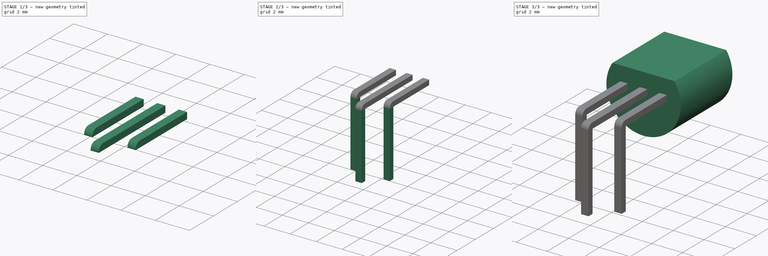
[diagram: build sequence overview — one tinted view per stage of 3, left to right]
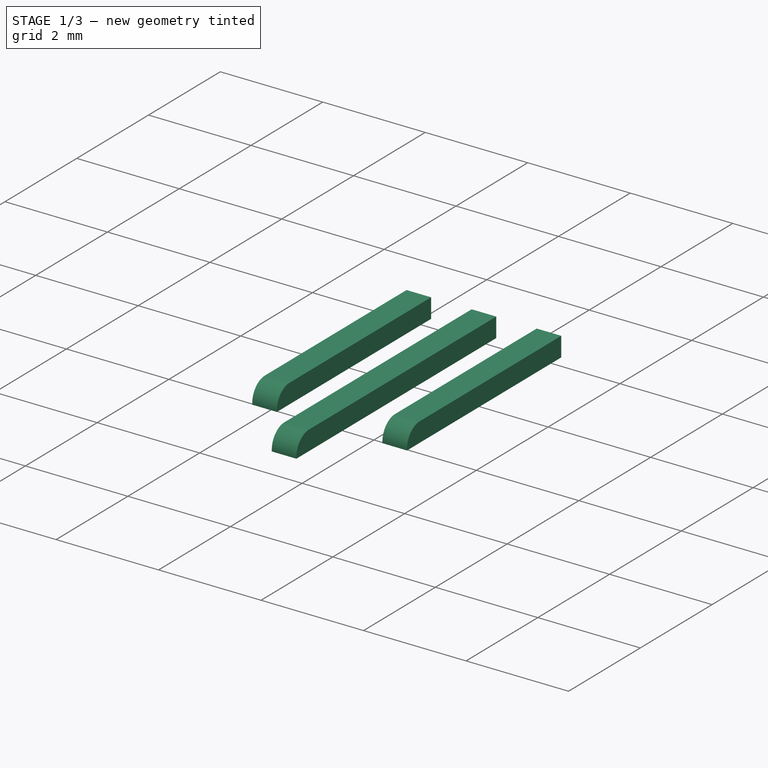
[diagram: stage 1 of 3 — iso view after this stage's code; geometry added in this stage tinted green]
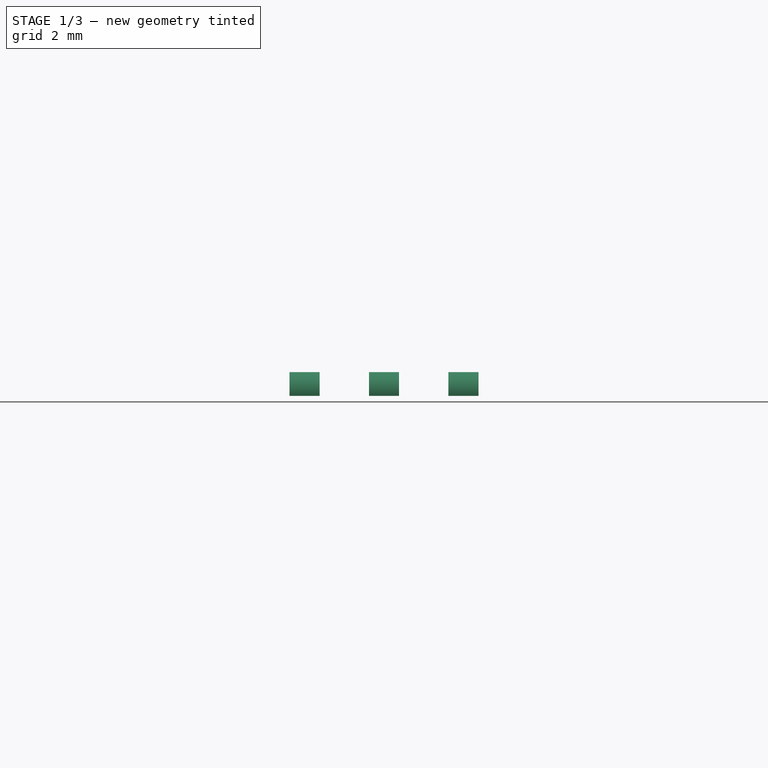
[diagram: stage 1 of 3 — front view after this stage's code; geometry added in this stage tinted green]
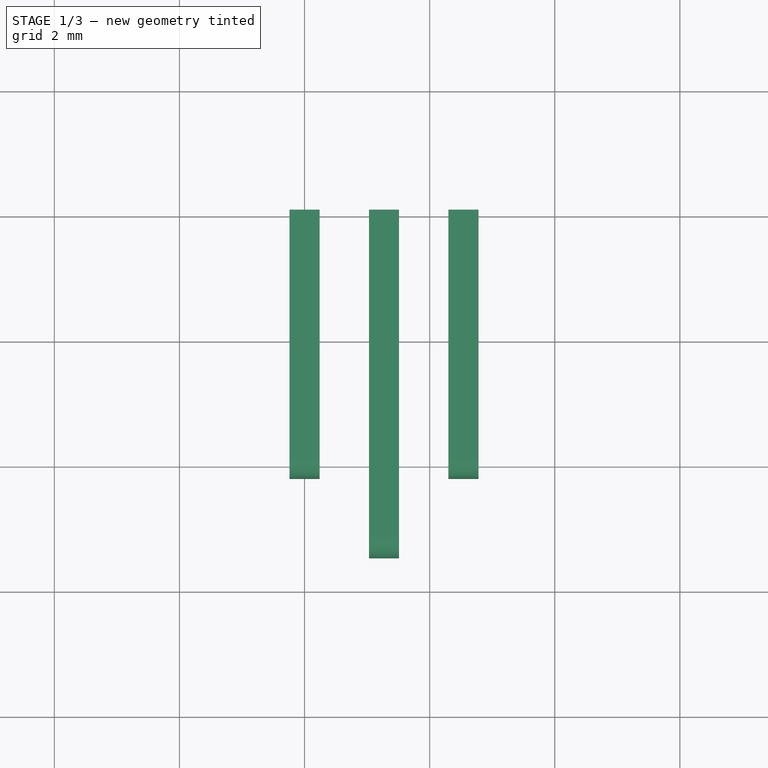
[diagram: stage 1 of 3 — top view after this stage's code; geometry added in this stage tinted green]
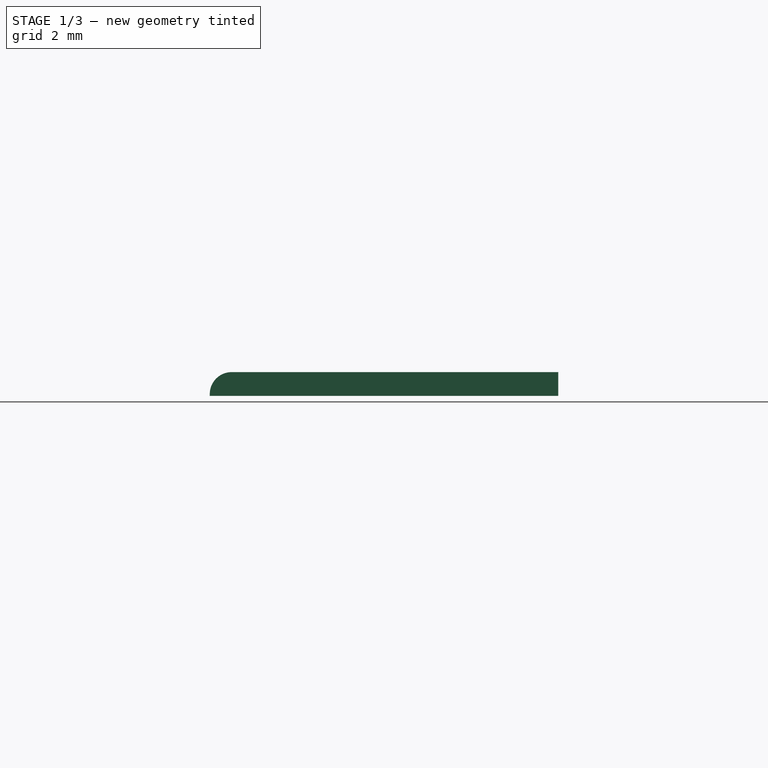
[diagram: stage 1 of 3 — right view after this stage's code; geometry added in this stage tinted green]
FCSTD DOCUMENT  (FreeCAD 0.16R6712 (Git))
Label: TO-92_W4.0mm_StaggerEven_Horizontal_FlatSideUp
License: All rights reserved
LicenseURL: http://en.wikipedia.org/wiki/All_rights_reserved
objects: Sketcher::SketchObject×3, PartDesign::Pad×3, Part::Feature×3, App::DocumentObjectGroup×1, PartDesign::Fillet×1, Part::MultiFuse×1
note: 14 computed .brp shape members not serialized (recipe doc carries the construction recipe); baked Part::Feature solids carry a one-line shape summary decoded from their .brp

FEATURE [Sketcher::SketchObject] Sketch002
  Placement = pos=(2.54,0,2.5) rot=(0,0,1;3.14159rad)
  expr: Constraints[29] = 0.38 / 2
  sketch-geometry (12):
    g0: LineSegment StartX=2.3 StartY=0.19 StartZ=0 EndX=2.78 EndY=0.19 EndZ=0
    g1: LineSegment StartX=2.78 StartY=0.19 StartZ=0 EndX=2.78 EndY=-4.11 EndZ=0
    g2: LineSegment StartX=2.78 StartY=-4.11 StartZ=0 EndX=2.3 EndY=-4.11 EndZ=0
    g3: LineSegment StartX=2.3 StartY=-4.11 StartZ=0 EndX=2.3 EndY=0.19 EndZ=0
    g4: LineSegment StartX=1.03 StartY=1.46 StartZ=0 EndX=1.51 EndY=1.46 EndZ=0
    g5: LineSegment StartX=1.51 StartY=1.46 StartZ=0 EndX=1.51 EndY=-4.11 EndZ=0
    g6: LineSegment StartX=1.51 StartY=-4.11 StartZ=0 EndX=1.03 EndY=-4.11 EndZ=0
    g7: LineSegment StartX=1.03 StartY=-4.11 StartZ=0 EndX=1.03 EndY=1.46 EndZ=0
    g8: LineSegment StartX=-0.24 StartY=0.19 StartZ=0 EndX=0.24 EndY=0.19 EndZ=0
    g9: LineSegment StartX=0.24 StartY=0.19 StartZ=0 EndX=0.24 EndY=-4.11 EndZ=0
    g10: LineSegment StartX=0.24 StartY=-4.11 StartZ=0 EndX=-0.24 EndY=-4.11 EndZ=0
    g11: LineSegment StartX=-0.24 StartY=-4.11 StartZ=0 EndX=-0.24 EndY=0.19 EndZ=0
  constraints (36):
    c: Coincident(g0,g1)
    c: Coincident(g1,g2)
    c: Coincident(g2,g3)
    c: Coincident(g3,g0)
    c: Horizontal(g0)
    c: Horizontal(g2)
    c: Vertical(g1)
    c: Vertical(g3)
    c: Coincident(g4,g5)
    c: Coincident(g5,g6)
    c: Coincident(g6,g7)
    c: Coincident(g7,g4)
    c: Horizontal(g4)
    c: Horizontal(g6)
    c: Vertical(g5)
    c: Vertical(g7)
    c: Coincident(g8,g9)
    c: Coincident(g9,g10)
    c: Coincident(g10,g11)
    c: Coincident(g11,g8)
    c: Horizontal(g8)
    c: Horizontal(g10)
    c: Vertical(g9)
    c: Vertical(g11)
    c: Equal(g8,g4)
    c: Equal(g4,g0)
    c: DistanceX(g8,g4) = 1.27
    c: DistanceX(g4,g0) = 1.27
    c: DistanceY(g1,g1) = 4.3
    c: DistanceY(g-1,g8) = 0.19
    c: DistanceY(g8,g4) = 1.27
    c: DistanceY(g0,g4) = 1.27
    c: DistanceX(g0,g0) = 0.48
    c: DistanceX(g8,g-1) = 0.24
    c: Equal(g1,g9)
    c: DistanceY(g2,g5) = 0
FEATURE [PartDesign::Pad] Pad002
  Length = 0.38
  Length2 = 100
  Placement = pos=(2.54,0,2.5) rot=(0,0,1;3.14159rad)
  Sketch = -> Sketch002
  Type = 0
FEATURE [Part::Feature] FusionAxisZ1  label="Z"
  shape: bbox 0.8 x 0.8 x 14 mm, 8 faces (baked)
FEATURE [Part::Feature] FusionAxisY1  label="Y"
  Placement = pos=(0,0,0.05) rot=(-1,0,0;1.5708rad)
  shape: bbox 0.8 x 14 x 0.8 mm, 8 faces (baked)
FEATURE [Part::Feature] FusionAxisX1  label="X"
  Placement = pos=(0,-0.05,0) rot=(0,1,0;1.5708rad)
  shape: bbox 14 x 0.8 x 0.8 mm, 8 faces (baked)
FEATURE [App::DocumentObjectGroup] axis
  Group = -> [FusionAxisZ1,FusionAxisY1,FusionAxisX1]
FEATURE [PartDesign::Fillet] Fillet
  Base = -> Pad002 [Edge16,Edge4,Edge28]
  Placement = pos=(2.54,0,2.5) rot=(0,0,1;3.14159rad)
  Radius = 0.35
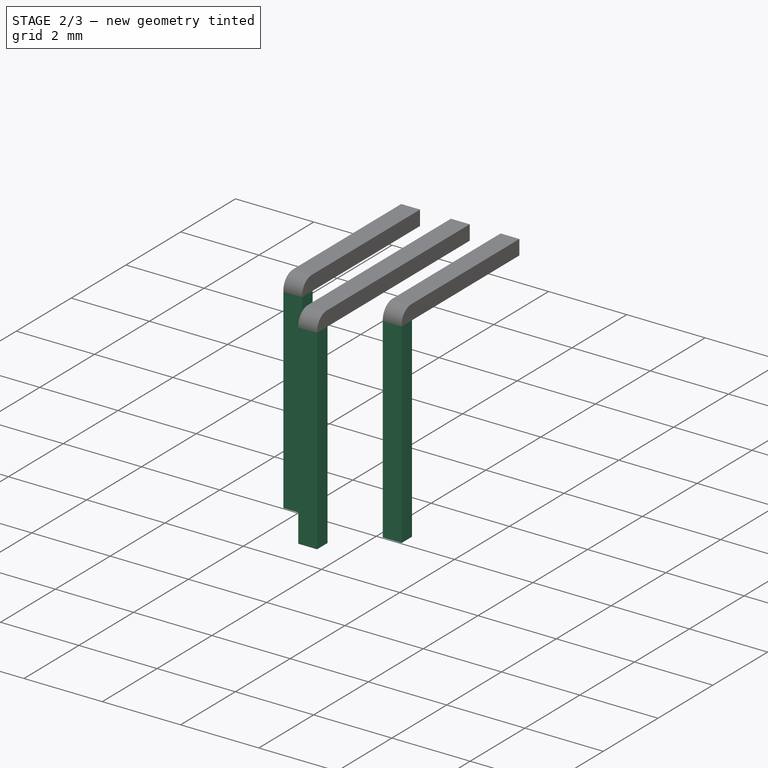
[diagram: stage 2 of 3 — iso view after this stage's code; geometry added in this stage tinted green]
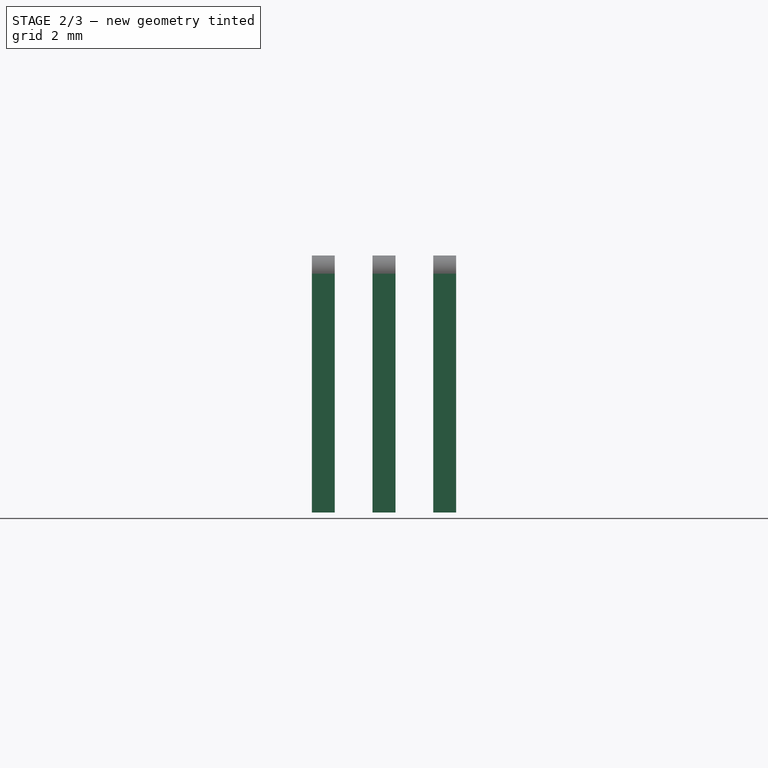
[diagram: stage 2 of 3 — front view after this stage's code; geometry added in this stage tinted green]
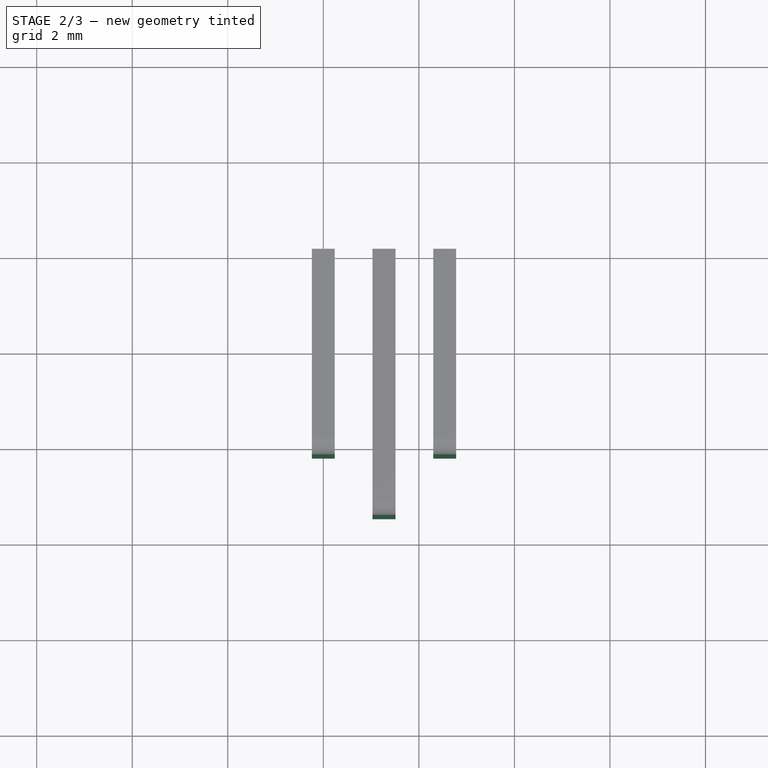
[diagram: stage 2 of 3 — top view after this stage's code; geometry added in this stage tinted green]
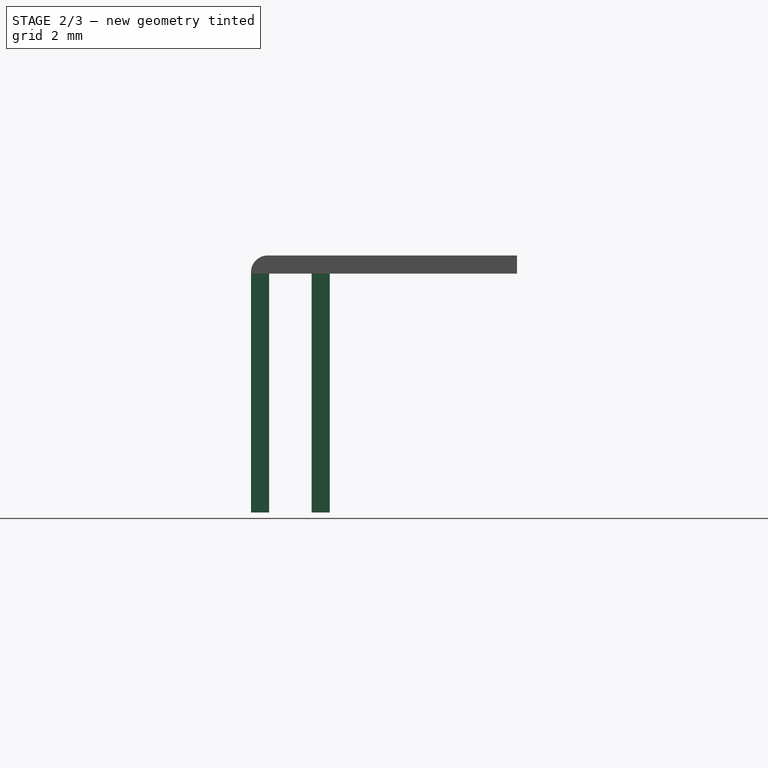
[diagram: stage 2 of 3 — right view after this stage's code; geometry added in this stage tinted green]
FEATURE [Sketcher::SketchObject] Sketch001
  Placement = pos=(0,0,2.5) rot=(0,0,1;0rad)
  expr: Constraints[38] = -1.27 - 0.38
  sketch-geometry (13):
    g0: LineSegment StartX=-0.24 StartY=0.19 StartZ=0 EndX=0.24 EndY=0.19 EndZ=0
    g1: LineSegment StartX=0.24 StartY=0.19 StartZ=0 EndX=0.24 EndY=-0.19 EndZ=0
    g2: LineSegment StartX=0.24 StartY=-0.19 StartZ=0 EndX=-0.24 EndY=-0.19 EndZ=0
    g3: LineSegment StartX=-0.24 StartY=-0.19 StartZ=0 EndX=-0.24 EndY=0.19 EndZ=0
    g4: LineSegment [constr] StartX=-0.24 StartY=0 StartZ=0 EndX=0.24 EndY=0 EndZ=0
    g5: LineSegment StartX=1.03 StartY=-1.46 StartZ=0 EndX=1.51 EndY=-1.46 EndZ=0
    g6: LineSegment StartX=1.51 StartY=-1.46 StartZ=0 EndX=1.51 EndY=-1.08 EndZ=0
    g7: LineSegment StartX=1.51 StartY=-1.08 StartZ=0 EndX=1.03 EndY=-1.08 EndZ=0
    g8: LineSegment StartX=1.03 StartY=-1.08 StartZ=0 EndX=1.03 EndY=-1.46 EndZ=0
    g9: LineSegment StartX=2.3 StartY=0.19 StartZ=0 EndX=2.78 EndY=0.19 EndZ=0
    g10: LineSegment StartX=2.78 StartY=0.19 StartZ=0 EndX=2.78 EndY=-0.19 EndZ=0
    g11: LineSegment StartX=2.78 StartY=-0.19 StartZ=0 EndX=2.3 EndY=-0.19 EndZ=0
    g12: LineSegment StartX=2.3 StartY=-0.19 StartZ=0 EndX=2.3 EndY=0.19 EndZ=0
  constraints (40):
    c: Coincident(g0,g1)
    c: Coincident(g1,g2)
    c: Coincident(g2,g3)
    c: Coincident(g3,g0)
    c: Horizontal(g0)
    c: Horizontal(g2)
    c: Vertical(g1)
    c: Vertical(g3)
    c: DistanceX(g0,g0) = 0.48
    c: DistanceY(g1,g1) = 0.38
    c: PointOnObject(g4,g3)
    c: PointOnObject(g4,g1)
    c: Horizontal(g4)
    c: PointOnObject(g-1,g4)
    c: Symmetric(g1,g1,g4)
    c: Symmetric(g4,g4,g-1)
    c: Coincident(g5,g6)
    c: Coincident(g6,g7)
    c: Coincident(g7,g8)
    c: Coincident(g8,g5)
    c: Horizontal(g5)
    c: Horizontal(g7)
    c: Vertical(g6)
    c: Vertical(g8)
    c: Coincident(g9,g10)
    c: Coincident(g10,g11)
    c: Coincident(g11,g12)
    c: Coincident(g12,g9)
    c: Horizontal(g9)
    c: Horizontal(g11)
    c: Vertical(g10)
    c: Vertical(g12)
    c: Equal(g5,g0)
    c: Equal(g9,g0)
    c: Equal(g3,g12)
    c: Equal(g8,g3)
    c: DistanceX(g0,g5) = 1.27
    c: DistanceX(g5,g9) = 1.27
    c: DistanceY(g0,g5) = -1.65
    c: DistanceY(g9,g0) = 0
FEATURE [PartDesign::Pad] Pad001
  Length = 5
  Length2 = 100
  Placement = pos=(0,0,2.5) rot=(0,0,1;0rad)
  Reversed = true
  Sketch = -> Sketch001
  Type = 0
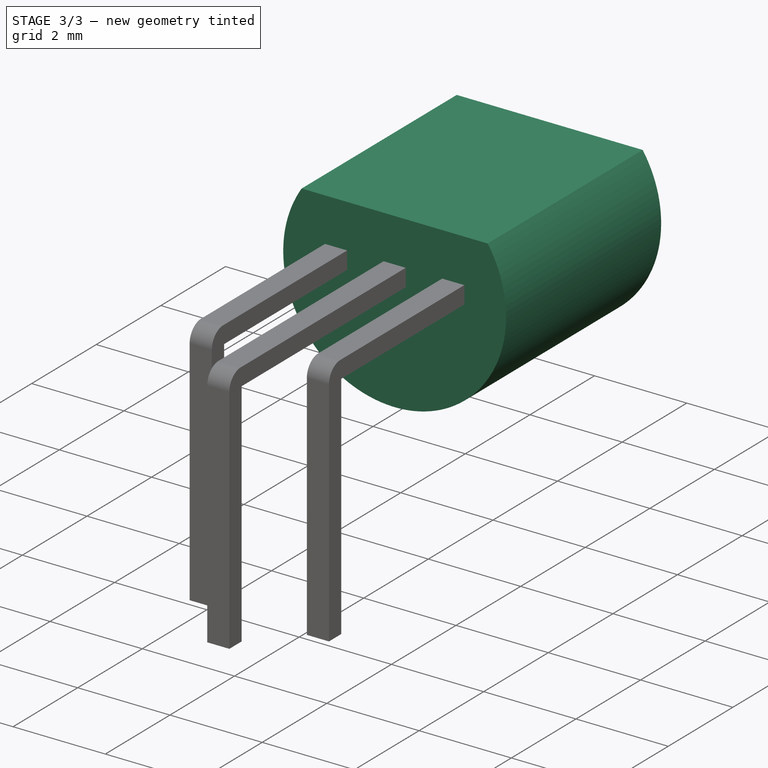
[diagram: stage 3 of 3 — iso view after this stage's code; geometry added in this stage tinted green]
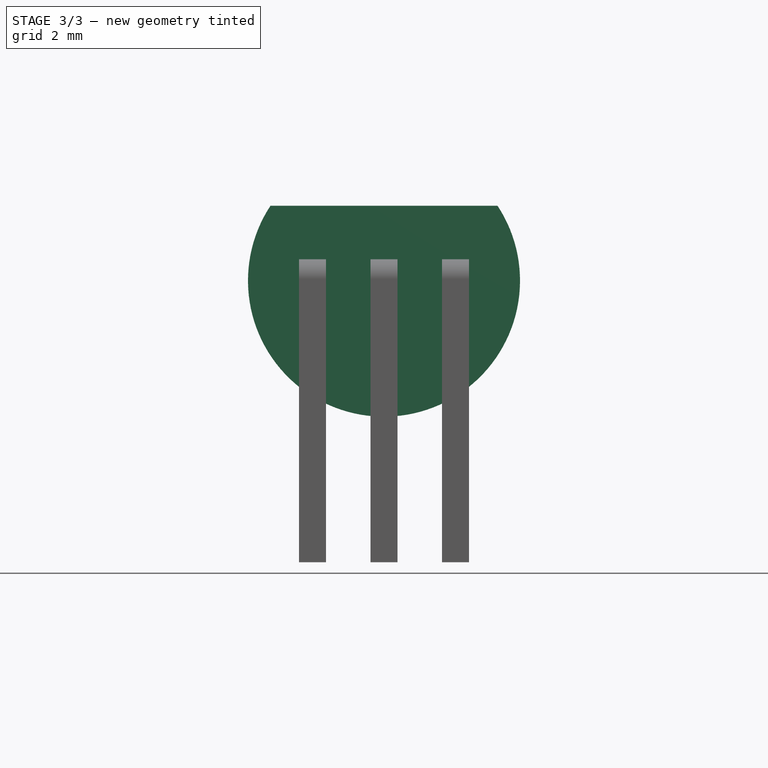
[diagram: stage 3 of 3 — front view after this stage's code; geometry added in this stage tinted green]
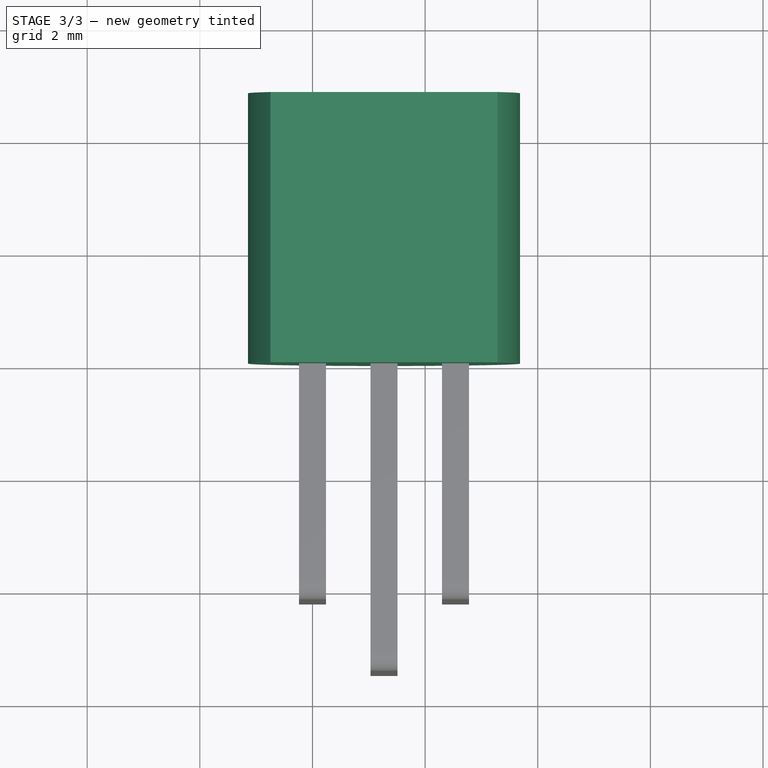
[diagram: stage 3 of 3 — top view after this stage's code; geometry added in this stage tinted green]
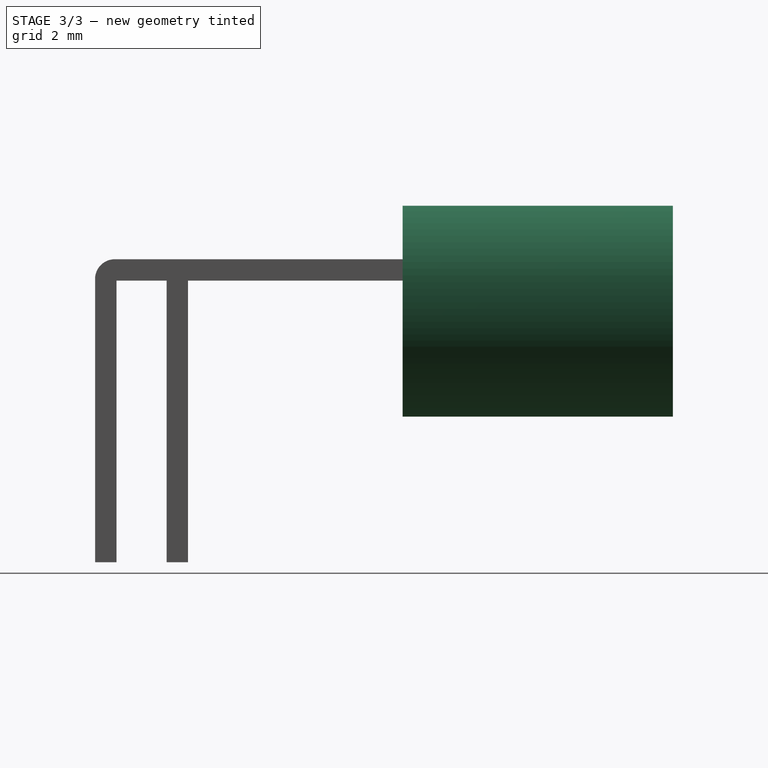
[diagram: stage 3 of 3 — right view after this stage's code; geometry added in this stage tinted green]
FEATURE [Sketcher::SketchObject] Sketch
  Placement = pos=(0,4,2.5) rot=(-1,0,0;1.5708rad)
  expr: Constraints[8] = 3.68 - 2.35
  expr: Constraints[7] = (5.21 + 4.45) / 4
  sketch-geometry (3):
    g0: LineSegment [constr] StartX=0 StartY=0 StartZ=0 EndX=1.27 EndY=0 EndZ=0
    g1: LineSegment StartX=-0.745769 StartY=-1.33 StartZ=0 EndX=3.28577 EndY=-1.33 EndZ=0
    g2: ArcOfCircle CenterX=1.27 CenterY=0 CenterZ=0 NormalX=0 NormalY=0 NormalZ=1 Radius=2.415 StartAngle=5.69995 EndAngle=10.008
  constraints (9):
    c: Coincident(g0,g-1)
    c: Horizontal(g0)
    c: DistanceX(g0,g0) = 1.27
    c: Horizontal(g1)
    c: Coincident(g2,g0)
    c: Coincident(g2,g1)
    c: Coincident(g2,g1)
    c: Radius(g2) = 2.415
    c: DistanceY(g1,g0) = 1.33
FEATURE [PartDesign::Pad] Pad
  Length = 4.8
  Length2 = 100
  Placement = pos=(0,4,2.5) rot=(-1,0,0;1.5708rad)
  Sketch = -> Sketch
  Type = 0
FEATURE [Part::MultiFuse] Pad001_mp_cp  label="TO-92_W4.0mm_StaggerEven_Horizontal_FlatSideUp"
  Shapes = -> [Pad001,Pad,Fillet]
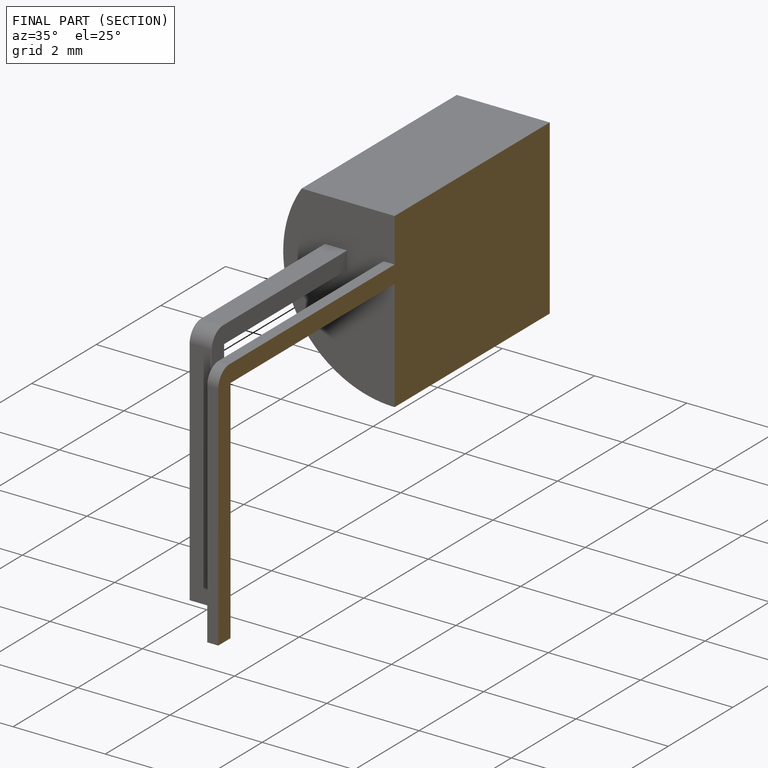
[diagram: finished part — half-section view (interior)]
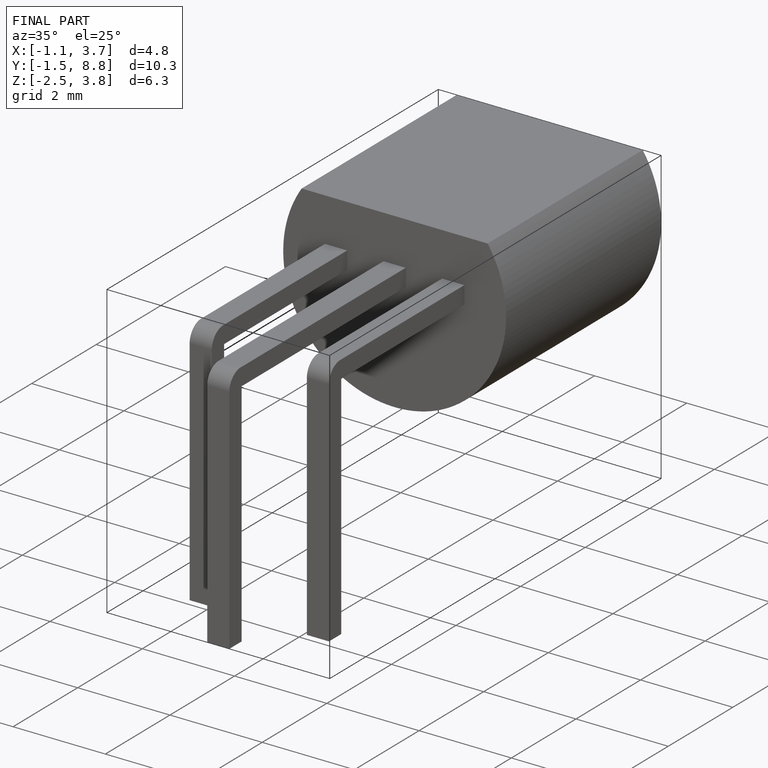
[diagram: finished part — iso view with bounding-box wireframe]
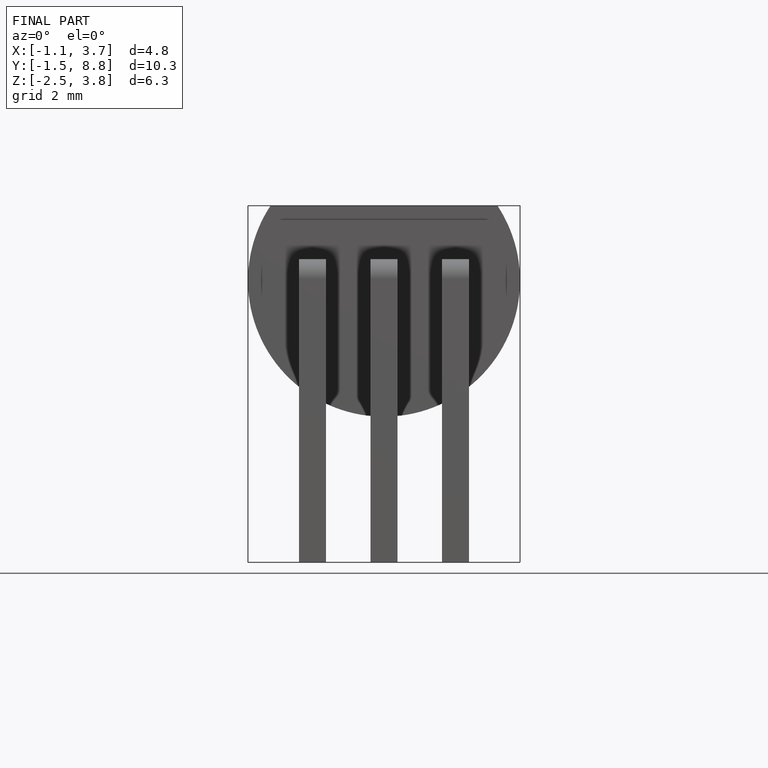
[diagram: finished part — front view with bounding-box wireframe]
